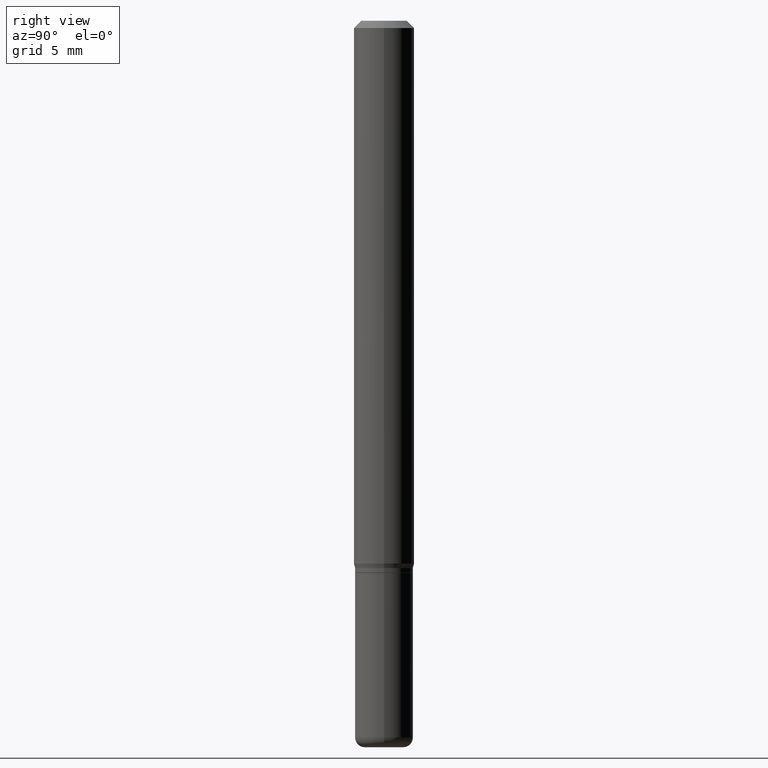
[diagram: clean part render]
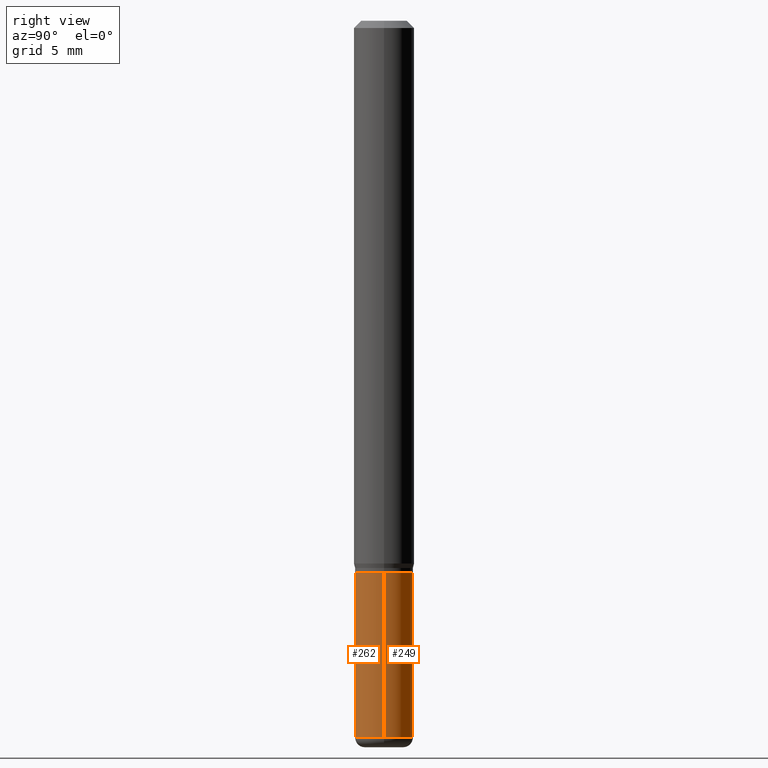
[diagram: same view with one multi-face feature highlighted, each face labeled with its STEP entity id]
A machine part, right view. The highlighted faces form ONE feature: a constant-radius fillet chain: 2 tangent blend faces with common blend radius 1.524 mm. The faces share edges in the B-rep.
Their STEP definitions:
[1] entity #249 (Cylinder):
#2 = EDGE_CURVE ( 'NONE', #74, #386, #167, .T. ) ;
#31 = DIRECTION ( 'NONE',  ( 1.000000000000000000, -6.982962677686268288E-15, 0.000000000000000000 ) ) ;
#39 = CARTESIAN_POINT ( 'NONE',  ( -0.06000000000000001860, 4.263256414560602437E-16, -2.951361054152944114E-30 ) ) ;
#44 = EDGE_LOOP ( 'NONE', ( #427, #493, #348, #321 ) ) ;
#45 = DIRECTION ( 'NONE',  ( 1.000000000000000000, -6.982962677686264344E-15, 0.000000000000000000 ) ) ;
#74 = VERTEX_POINT ( 'NONE', #487 ) ;
#100 = CIRCLE ( 'NONE', #172, 0.05999999999999999778 ) ;
#102 = DIRECTION ( 'NONE',  ( -2.445468806185136597E-29, 3.491481338843145583E-15, 1.000000000000000000 ) ) ;
#119 = DIRECTION ( 'NONE',  ( -2.445468806185136877E-29, 3.491481338843145188E-15, 1.000000000000000000 ) ) ;
#167 = LINE ( 'NONE', #256, #309 ) ;
#172 = AXIS2_PLACEMENT_3D ( 'NONE', #385, #388, #31 ) ;
#177 = VECTOR ( 'NONE', #119, 39.37007874015748143 ) ;
#182 = FACE_OUTER_BOUND ( 'NONE', #44, .T. ) ;
#190 = VERTEX_POINT ( 'NONE', #380 ) ;
#231 = CIRCLE ( 'NONE', #294, 0.06000000000000003247 ) ;
#234 = LINE ( 'NONE', #39, #177 ) ;
#249 = ADVANCED_FACE ( 'NONE', ( #182 ), #261, .T. ) ;
#256 = CARTESIAN_POINT ( 'NONE',  ( 0.06000000000000001860, -4.189777606611761407E-16, 2.925706065477562457E-30 ) ) ;
#259 = DIRECTION ( 'NONE',  ( 1.000000000000000000, -6.982962677686266711E-15, 4.876176775795935793E-29 ) ) ;
#261 = CYLINDRICAL_SURFACE ( 'NONE', #431, 0.06000000000000001860 ) ;
#284 = EDGE_CURVE ( 'NONE', #190, #426, #234, .T. ) ;
#294 = AXIS2_PLACEMENT_3D ( 'NONE', #430, #442, #45 ) ;
#309 = VECTOR ( 'NONE', #455, 39.37007874015748143 ) ;
#315 = CARTESIAN_POINT ( 'NONE',  ( -0.05999999999999999778, -4.147514912428460298E-15, -1.140000000000000124 ) ) ;
#316 = EDGE_CURVE ( 'NONE', #386, #426, #100, .T. ) ;
#321 = ORIENTED_EDGE ( 'NONE', *, *, #2, .F. ) ;
#348 = ORIENTED_EDGE ( 'NONE', *, *, #316, .F. ) ;
#380 = CARTESIAN_POINT ( 'NONE',  ( -0.06000000000000003247, -4.147514912428460298E-15, -1.479999999999999982 ) ) ;
#385 = CARTESIAN_POINT ( 'NONE',  ( 2.787834439051055989E-29, -3.980288726281186698E-15, -1.140000000000000124 ) ) ;
#386 = VERTEX_POINT ( 'NONE', #479 ) ;
#388 = DIRECTION ( 'NONE',  ( -2.445468806185136597E-29, 3.491481338843145583E-15, 1.000000000000000000 ) ) ;
#393 = EDGE_CURVE ( 'NONE', #74, #190, #231, .T. ) ;
#426 = VERTEX_POINT ( 'NONE', #315 ) ;
#427 = ORIENTED_EDGE ( 'NONE', *, *, #393, .T. ) ;
#430 = CARTESIAN_POINT ( 'NONE',  ( 3.619293833154002365E-29, -5.167392381487854879E-15, -1.479999999999999982 ) ) ;
#431 = AXIS2_PLACEMENT_3D ( 'NONE', #463, #102, #259 ) ;
#442 = DIRECTION ( 'NONE',  ( -2.445468806185136597E-29, 3.491481338843145583E-15, 1.000000000000000000 ) ) ;
#455 = DIRECTION ( 'NONE',  ( -2.445468806185136877E-29, 3.491481338843145188E-15, 1.000000000000000000 ) ) ;
#463 = CARTESIAN_POINT ( 'NONE',  ( 0.000000000000000000, 0.000000000000000000, 0.000000000000000000 ) ) ;
#479 = CARTESIAN_POINT ( 'NONE',  ( 0.05999999999999999778, -4.399266486942362543E-15, -1.140000000000000124 ) ) ;
#487 = CARTESIAN_POINT ( 'NONE',  ( 0.06000000000000003247, -5.586370142149031512E-15, -1.479999999999999982 ) ) ;
#493 = ORIENTED_EDGE ( 'NONE', *, *, #284, .T. ) ;
[2] entity #262 (Cylinder):
#2 = EDGE_CURVE ( 'NONE', #74, #386, #167, .T. ) ;
#26 = DIRECTION ( 'NONE',  ( 1.000000000000000000, -6.982962677686268288E-15, 0.000000000000000000 ) ) ;
#39 = CARTESIAN_POINT ( 'NONE',  ( -0.06000000000000001860, 4.263256414560602437E-16, -2.951361054152944114E-30 ) ) ;
#74 = VERTEX_POINT ( 'NONE', #487 ) ;
#119 = DIRECTION ( 'NONE',  ( -2.445468806185136877E-29, 3.491481338843145188E-15, 1.000000000000000000 ) ) ;
#124 = CIRCLE ( 'NONE', #413, 0.06000000000000003247 ) ;
#141 = CARTESIAN_POINT ( 'NONE',  ( 2.787834439051055989E-29, -3.980288726281186698E-15, -1.140000000000000124 ) ) ;
#153 = ORIENTED_EDGE ( 'NONE', *, *, #2, .T. ) ;
#167 = LINE ( 'NONE', #256, #309 ) ;
#177 = VECTOR ( 'NONE', #119, 39.37007874015748143 ) ;
#183 = DIRECTION ( 'NONE',  ( -2.445468806185136597E-29, 3.491481338843145583E-15, 1.000000000000000000 ) ) ;
#190 = VERTEX_POINT ( 'NONE', #380 ) ;
#199 = ORIENTED_EDGE ( 'NONE', *, *, #208, .T. ) ;
#208 = EDGE_CURVE ( 'NONE', #190, #74, #124, .T. ) ;
#221 = CIRCLE ( 'NONE', #353, 0.05999999999999999778 ) ;
#228 = DIRECTION ( 'NONE',  ( 1.000000000000000000, -6.982962677686264344E-15, 0.000000000000000000 ) ) ;
#233 = EDGE_CURVE ( 'NONE', #426, #386, #221, .T. ) ;
#234 = LINE ( 'NONE', #39, #177 ) ;
#256 = CARTESIAN_POINT ( 'NONE',  ( 0.06000000000000001860, -4.189777606611761407E-16, 2.925706065477562457E-30 ) ) ;
#262 = ADVANCED_FACE ( 'NONE', ( #436 ), #305, .T. ) ;
#267 = CARTESIAN_POINT ( 'NONE',  ( 3.619293833154002365E-29, -5.167392381487854879E-15, -1.479999999999999982 ) ) ;
#275 = CARTESIAN_POINT ( 'NONE',  ( 0.000000000000000000, 0.000000000000000000, 0.000000000000000000 ) ) ;
#284 = EDGE_CURVE ( 'NONE', #190, #426, #234, .T. ) ;
#295 = DIRECTION ( 'NONE',  ( -2.445468806185136597E-29, 3.491481338843145583E-15, 1.000000000000000000 ) ) ;
#305 = CYLINDRICAL_SURFACE ( 'NONE', #420, 0.06000000000000001860 ) ;
#309 = VECTOR ( 'NONE', #455, 39.37007874015748143 ) ;
#315 = CARTESIAN_POINT ( 'NONE',  ( -0.05999999999999999778, -4.147514912428460298E-15, -1.140000000000000124 ) ) ;
#350 = DIRECTION ( 'NONE',  ( 1.000000000000000000, -6.982962677686266711E-15, 4.876176775795935793E-29 ) ) ;
#353 = AXIS2_PLACEMENT_3D ( 'NONE', #141, #295, #26 ) ;
#355 = DIRECTION ( 'NONE',  ( -2.445468806185136597E-29, 3.491481338843145583E-15, 1.000000000000000000 ) ) ;
#361 = EDGE_LOOP ( 'NONE', ( #439, #199, #153, #432 ) ) ;
#380 = CARTESIAN_POINT ( 'NONE',  ( -0.06000000000000003247, -4.147514912428460298E-15, -1.479999999999999982 ) ) ;
#386 = VERTEX_POINT ( 'NONE', #479 ) ;
#413 = AXIS2_PLACEMENT_3D ( 'NONE', #267, #183, #228 ) ;
#420 = AXIS2_PLACEMENT_3D ( 'NONE', #275, #355, #350 ) ;
#426 = VERTEX_POINT ( 'NONE', #315 ) ;
#432 = ORIENTED_EDGE ( 'NONE', *, *, #233, .F. ) ;
#436 = FACE_OUTER_BOUND ( 'NONE', #361, .T. ) ;
#439 = ORIENTED_EDGE ( 'NONE', *, *, #284, .F. ) ;
#455 = DIRECTION ( 'NONE',  ( -2.445468806185136877E-29, 3.491481338843145188E-15, 1.000000000000000000 ) ) ;
#479 = CARTESIAN_POINT ( 'NONE',  ( 0.05999999999999999778, -4.399266486942362543E-15, -1.140000000000000124 ) ) ;
#487 = CARTESIAN_POINT ( 'NONE',  ( 0.06000000000000003247, -5.586370142149031512E-15, -1.479999999999999982 ) ) ;